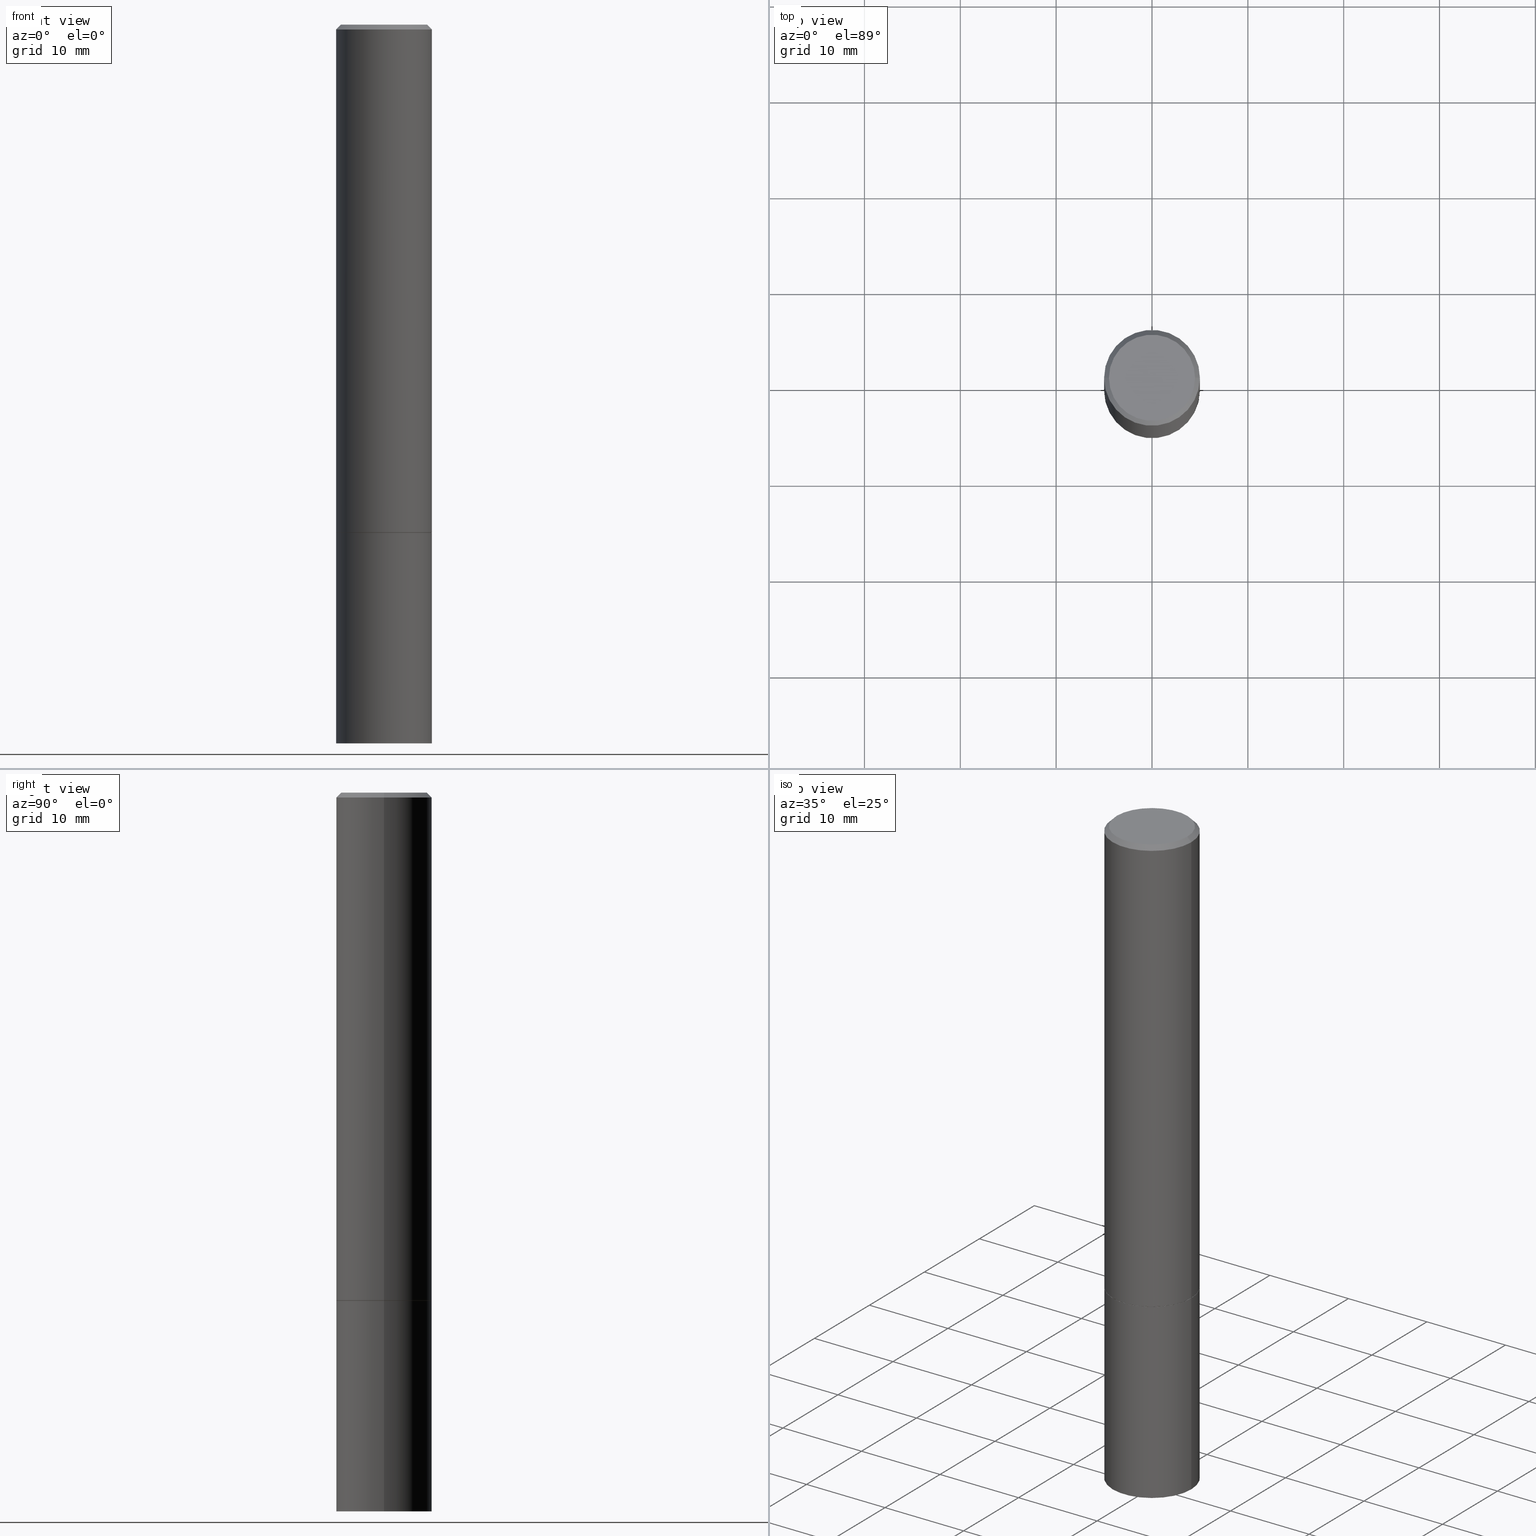
[diagram: canonical four-view strip — front | top / right | iso, engineering-drawing reading convention]
A machine part, canonical four-view strip (front | top / right | iso — engineering-drawing reading convention). The complete STEP part file that produces these views, byte-faithful:
ISO-10303-21;
HEADER;
FILE_DESCRIPTION (( 'STEP AP203' ),
    '1' );
FILE_NAME ('48812.STEP',
    '2024-02-28T15:23:30',
    ( '' ),
    ( '' ),
    'SwSTEP 2.0',
    'SolidWorks 2023',
    '' );
FILE_SCHEMA (( 'CONFIG_CONTROL_DESIGN' ));
ENDSEC;

DATA;
#1 = DATE_AND_TIME ( #59, #179 ) ;
#2 = EDGE_LOOP ( 'NONE', ( #311, #331, #308, #202 ) ) ;
#3 = SECURITY_CLASSIFICATION_LEVEL ( 'unclassified' ) ;
#4 = DIRECTION ( 'NONE',  ( -0.7071067811865469066, 2.468850131082251144E-15, -0.7071067811865479058 ) ) ;
#5 = ORIENTED_EDGE ( 'NONE', *, *, #273, .T. ) ;
#6 = ORIENTED_EDGE ( 'NONE', *, *, #151, .F. ) ;
#7 = ORIENTED_EDGE ( 'NONE', *, *, #272, .T. ) ;
#8 = VECTOR ( 'NONE', #4, 39.37007874015748854 ) ;
#9 = CONICAL_SURFACE ( 'NONE', #357, 0.1968499999999997752, 0.7853981633974476129 ) ;
#10 = CARTESIAN_POINT ( 'NONE',  ( 7.220980290903470182E-29, -1.030964609733603853E-14, -2.952799999999999869 ) ) ;
#11 = EDGE_LOOP ( 'NONE', ( #284, #18 ) ) ;
#12 = EDGE_CURVE ( 'NONE', #190, #319, #282, .T. ) ;
#13 = DIRECTION ( 'NONE',  ( 1.000000000000000000, -6.982962677686266711E-15, 0.000000000000000000 ) ) ;
#14 = DIRECTION ( 'NONE',  ( -2.445468806185136597E-29, 3.491481338843145583E-15, 1.000000000000000000 ) ) ;
#15 = ORIENTED_EDGE ( 'NONE', *, *, #47, .T. ) ;
#16 = CARTESIAN_POINT ( 'NONE',  ( 4.890937612370276662E-31, -6.982962677686296539E-17, -0.02000000000000001776 ) ) ;
#17 = LOCAL_TIME ( 10, 23, 30.00000000000000000, #180 ) ;
#18 = ORIENTED_EDGE ( 'NONE', *, *, #222, .T. ) ;
#19 = DIRECTION ( 'NONE',  ( -2.445468806185136877E-29, 3.491481338843145188E-15, 1.000000000000000000 ) ) ;
#20 = CARTESIAN_POINT ( 'NONE',  ( 1.374596203102613789E-15, 0.1968499999999896999, -2.952800000000000313 ) ) ;
#21 = CC_DESIGN_PERSON_AND_ORGANIZATION_ASSIGNMENT ( #64, #287, ( #286 ) ) ;
#22 = AXIS2_PLACEMENT_3D ( 'NONE', #358, #154, #330 ) ;
#23 =( NAMED_UNIT ( * ) PLANE_ANGLE_UNIT ( ) SI_UNIT ( $, .RADIAN. ) );
#24 = DIRECTION ( 'NONE',  ( -2.445468806185136597E-29, 3.491481338843145583E-15, 1.000000000000000000 ) ) ;
#25 = AXIS2_PLACEMENT_3D ( 'NONE', #73, #48, #199 ) ;
#26 = COORDINATED_UNIVERSAL_TIME_OFFSET ( 5, 0, .BEHIND. ) ;
#27 = ORIENTED_EDGE ( 'NONE', *, *, #132, .F. ) ;
#28 = APPROVAL_STATUS ( 'not_yet_approved' ) ;
#29 = EDGE_LOOP ( 'NONE', ( #351, #317, #36, #173 ) ) ;
#30 = EDGE_LOOP ( 'NONE', ( #177, #63, #253, #71 ) ) ;
#31 = AXIS2_PLACEMENT_3D ( 'NONE', #137, #363, #80 ) ;
#32 = DIRECTION ( 'NONE',  ( -2.445468806185136597E-29, 3.491481338843145583E-15, 1.000000000000000000 ) ) ;
#33 = PERSON_AND_ORGANIZATION ( #125, #79 ) ;
#34 = VERTEX_POINT ( 'NONE', #88 ) ;
#35 = FACE_OUTER_BOUND ( 'NONE', #57, .T. ) ;
#36 = ORIENTED_EDGE ( 'NONE', *, *, #214, .T. ) ;
#37 = CIRCLE ( 'NONE', #275, 0.1968500000000000250 ) ;
#38 = DIRECTION ( 'NONE',  ( -2.445468806185136597E-29, 3.491481338843145583E-15, 1.000000000000000000 ) ) ;
#39 = MANIFOLD_SOLID_BREP ( 'Body-Move/Copy2[2]', #161 ) ;
#40 = CARTESIAN_POINT ( 'NONE',  ( -0.1958499999999999963, -5.894076161777834937E-15, -2.086699999999999999 ) ) ;
#41 = CARTESIAN_POINT ( 'NONE',  ( 7.220980290903470182E-29, -1.030964609733603853E-14, -2.952799999999999869 ) ) ;
#42 = EDGE_CURVE ( 'NONE', #270, #355, #210, .T. ) ;
#43 = LINE ( 'NONE', #40, #102 ) ;
#44 = APPROVAL_PERSON_ORGANIZATION ( #33, #148, #313 ) ;
#45 = SECURITY_CLASSIFICATION ( '', '', #3 ) ;
#46 = FACE_OUTER_BOUND ( 'NONE', #169, .T. ) ;
#47 = EDGE_CURVE ( 'NONE', #117, #190, #209, .T. ) ;
#48 = DIRECTION ( 'NONE',  ( -2.438088387897960049E-29, 3.491481338843145188E-15, 1.000000000000000000 ) ) ;
#49 = FACE_OUTER_BOUND ( 'NONE', #2, .T. ) ;
#50 = AXIS2_PLACEMENT_3D ( 'NONE', #249, #139, #359 ) ;
#51 = APPROVAL_PERSON_ORGANIZATION ( #83, #96, #112 ) ;
#52 = PLANE ( 'NONE',  #225 ) ;
#53 = EDGE_CURVE ( 'NONE', #270, #142, #221, .T. ) ;
#54 = FACE_OUTER_BOUND ( 'NONE', #172, .T. ) ;
#55 = EDGE_CURVE ( 'NONE', #301, #319, #343, .T. ) ;
#56 = COORDINATED_UNIVERSAL_TIME_OFFSET ( 5, 0, .BEHIND. ) ;
#57 = EDGE_LOOP ( 'NONE', ( #238, #346 ) ) ;
#58 = AXIS2_PLACEMENT_3D ( 'NONE', #185, #182, #67 ) ;
#59 = CALENDAR_DATE ( 2024, 28, 2 ) ;
#60 = CARTESIAN_POINT ( 'NONE',  ( 0.000000000000000000, 0.000000000000000000, 0.000000000000000000 ) ) ;
#61 = EDGE_LOOP ( 'NONE', ( #149, #6, #15, #146 ) ) ;
#62 = PERSON_AND_ORGANIZATION ( #125, #79 ) ;
#63 = ORIENTED_EDGE ( 'NONE', *, *, #244, .T. ) ;
#64 = PERSON_AND_ORGANIZATION ( #125, #79 ) ;
#65 = DIRECTION ( 'NONE',  ( -2.445468806185136877E-29, 3.491481338843145188E-15, 1.000000000000000000 ) ) ;
#66 = ADVANCED_FACE ( 'NONE', ( #207 ), #237, .T. ) ;
#67 = DIRECTION ( 'NONE',  ( 1.000000000000000000, -6.982962677686268288E-15, 0.000000000000000000 ) ) ;
#68 = EDGE_CURVE ( 'NONE', #350, #274, #113, .T. ) ;
#69 = DIRECTION ( 'NONE',  ( -1.000000000000000000, 6.982962677686266711E-15, 0.000000000000000000 ) ) ;
#70 = PLANE ( 'NONE',  #25 ) ;
#71 = ORIENTED_EDGE ( 'NONE', *, *, #233, .F. ) ;
#72 = LINE ( 'NONE', #95, #315 ) ;
#73 = CARTESIAN_POINT ( 'NONE',  ( 5.102959757866523939E-29, -7.285674109763990928E-15, -2.086699999999999999 ) ) ;
#74 = DIRECTION ( 'NONE',  ( -2.445468806185136597E-29, 3.491481338843145583E-15, 1.000000000000000000 ) ) ;
#75 = CIRCLE ( 'NONE', #107, 0.1768499999999997851 ) ;
#76 = FACE_OUTER_BOUND ( 'NONE', #30, .T. ) ;
#77 = VERTEX_POINT ( 'NONE', #181 ) ;
#78 = CARTESIAN_POINT ( 'NONE',  ( 5.102959757866523939E-29, -7.285674109763990928E-15, -2.086699999999999999 ) ) ;
#79 = ORGANIZATION ( 'UNSPECIFIED', 'UNSPECIFIED', '' ) ;
#80 = DIRECTION ( 'NONE',  ( 1.000000000000000000, 0.000000000000000000, 0.000000000000000000 ) ) ;
#81 = CC_DESIGN_PERSON_AND_ORGANIZATION_ASSIGNMENT ( #89, #292, ( #324 ) ) ;
#82 = ORIENTED_EDGE ( 'NONE', *, *, #86, .T. ) ;
#83 = PERSON_AND_ORGANIZATION ( #125, #79 ) ;
#84 = CALENDAR_DATE ( 2024, 28, 2 ) ;
#85 = ORIENTED_EDGE ( 'NONE', *, *, #233, .T. ) ;
#86 = EDGE_CURVE ( 'NONE', #142, #223, #43, .T. ) ;
#87 = CARTESIAN_POINT ( 'NONE',  ( 0.1968499999999997752, -1.420318657638187347E-15, -0.02000000000000001776 ) ) ;
#88 = CARTESIAN_POINT ( 'NONE',  ( -0.1968500000000000250, -7.398956728206258518E-15, -2.086699999999999999 ) ) ;
#89 = PERSON_AND_ORGANIZATION ( #125, #79 ) ;
#90 = EDGE_LOOP ( 'NONE', ( #261, #291 ) ) ;
#91 = AXIS2_PLACEMENT_3D ( 'NONE', #277, #101, #159 ) ;
#92 = PRODUCT_RELATED_PRODUCT_CATEGORY ( 'detail', '', ( #286 ) ) ;
#93 = CARTESIAN_POINT ( 'NONE',  ( -0.1968500000000000250, -2.277302752257247033E-15, -2.085699999999999665 ) ) ;
#94 = DIRECTION ( 'NONE',  ( 1.000000000000000000, -6.982962677686267499E-15, 0.000000000000000000 ) ) ;
#95 = CARTESIAN_POINT ( 'NONE',  ( -0.1968500000000000250, 1.398703375343757393E-15, -9.682923725166783677E-30 ) ) ;
#96 = APPROVAL ( #141, 'UNSPECIFIED' ) ;
#97 = CONICAL_SURFACE ( 'NONE', #162, 0.1968499999999997752, 0.7853981633974476129 ) ;
#98 = AXIS2_PLACEMENT_3D ( 'NONE', #356, #157, #94 ) ;
#99 = CARTESIAN_POINT ( 'NONE',  ( 0.1968500000000000250, -8.660270312866532536E-15, -2.086699999999999999 ) ) ;
#100 = DIRECTION ( 'NONE',  ( 2.445468806185136597E-29, -3.491481338843145583E-15, -1.000000000000000000 ) ) ;
#101 = DIRECTION ( 'NONE',  ( -2.445468806185136597E-29, 3.491481338843145583E-15, 1.000000000000000000 ) ) ;
#102 = VECTOR ( 'NONE', #211, 39.37007874015748854 ) ;
#103 = CIRCLE ( 'NONE', #297, 0.1968499999999997752 ) ;
#104 = EDGE_LOOP ( 'NONE', ( #288, #5, #124, #289 ) ) ;
#105 = CYLINDRICAL_SURFACE ( 'NONE', #247, 0.1968500000000000250 ) ;
#106 = ADVANCED_FACE ( 'NONE', ( #329 ), #97, .T. ) ;
#107 = AXIS2_PLACEMENT_3D ( 'NONE', #129, #14, #126 ) ;
#108 = LOCAL_TIME ( 10, 23, 30.00000000000000000, #56 ) ;
#109 = PERSON_AND_ORGANIZATION_ROLE ( 'classification_officer' ) ;
#110 = APPLICATION_PROTOCOL_DEFINITION ( 'international standard', 'config_control_design', 1994, #184 ) ;
#111 = CARTESIAN_POINT ( 'NONE',  ( 0.1958499999999999963, -8.653287350188846522E-15, -2.086699999999999999 ) ) ;
#112 = APPROVAL_ROLE ( '' ) ;
#113 = LINE ( 'NONE', #325, #155 ) ;
#114 = AXIS2_PLACEMENT_3D ( 'NONE', #153, #266, #327 ) ;
#115 = CC_DESIGN_SECURITY_CLASSIFICATION ( #45, ( #324 ) ) ;
#116 = PERSON_AND_ORGANIZATION ( #125, #79 ) ;
#117 = VERTEX_POINT ( 'NONE', #302 ) ;
#118 = DIRECTION ( 'NONE',  ( 0.7071067811865469066, -7.319954787623252890E-15, -0.7071067811865479058 ) ) ;
#119 = ORIENTED_EDGE ( 'NONE', *, *, #53, .T. ) ;
#120 = DIRECTION ( 'NONE',  ( -1.000000000000000000, 6.982962677686266711E-15, 0.000000000000000000 ) ) ;
#121 = ORIENTED_EDGE ( 'NONE', *, *, #144, .F. ) ;
#122 = DIRECTION ( 'NONE',  ( 1.000000000000000000, -6.982962677686268288E-15, 0.000000000000000000 ) ) ;
#123 = CC_DESIGN_PERSON_AND_ORGANIZATION_ASSIGNMENT ( #62, #109, ( #45 ) ) ;
#124 = ORIENTED_EDGE ( 'NONE', *, *, #42, .T. ) ;
#125 = PERSON ( 'UNSPECIFIED', 'UNSPECIFIED', 'UNSPECIFIED', ('UNSPECIFIED'), ('UNSPECIFIED'), ('UNSPECIFIED') ) ;
#126 = DIRECTION ( 'NONE',  ( 1.000000000000000000, -6.982962677686266711E-15, 4.875932113059884174E-29 ) ) ;
#127 = ORIENTED_EDGE ( 'NONE', *, *, #42, .F. ) ;
#128 = APPROVAL_PERSON_ORGANIZATION ( #116, #218, #320 ) ;
#129 = CARTESIAN_POINT ( 'NONE',  ( -1.043851414335219820E-46, 1.490343170380447200E-32, 4.268512490100411279E-18 ) ) ;
#130 = DIMENSIONAL_EXPONENTS ( 1.000000000000000000, 0.000000000000000000, 0.000000000000000000, 0.000000000000000000, 0.000000000000000000, 0.000000000000000000, 0.000000000000000000 ) ;
#131 = CARTESIAN_POINT ( 'NONE',  ( 4.890937612370276662E-31, -6.982962677686296539E-17, -0.02000000000000001776 ) ) ;
#132 = EDGE_CURVE ( 'NONE', #350, #77, #133, .T. ) ;
#133 = CIRCLE ( 'NONE', #263, 0.1968500000000000250 ) ;
#134 = DIRECTION ( 'NONE',  ( -2.445468806185136597E-29, 3.491481338843145583E-15, 1.000000000000000000 ) ) ;
#135 = CIRCLE ( 'NONE', #50, 0.1968500000000000250 ) ;
#136 = ORIENTED_EDGE ( 'NONE', *, *, #68, .T. ) ;
#137 = CARTESIAN_POINT ( 'NONE',  ( 0.000000000000000000, 0.000000000000000000, 0.000000000000000000 ) ) ;
#138 = CARTESIAN_POINT ( 'NONE',  ( 0.000000000000000000, 0.000000000000000000, 0.000000000000000000 ) ) ;
#139 = DIRECTION ( 'NONE',  ( -2.445468806185136597E-29, 3.491481338843145583E-15, 1.000000000000000000 ) ) ;
#140 = VECTOR ( 'NONE', #189, 39.37007874015748143 ) ;
#141 = APPROVAL_STATUS ( 'not_yet_approved' ) ;
#142 = VERTEX_POINT ( 'NONE', #240 ) ;
#143 = CALENDAR_DATE ( 2024, 28, 2 ) ;
#144 = EDGE_CURVE ( 'NONE', #34, #274, #276, .T. ) ;
#145 = DIRECTION ( 'NONE',  ( -2.445468806185136597E-29, 3.491481338843145583E-15, 1.000000000000000000 ) ) ;
#146 = ORIENTED_EDGE ( 'NONE', *, *, #12, .T. ) ;
#147 = CARTESIAN_POINT ( 'NONE',  ( 5.102959757866523939E-29, -7.285674109763990928E-15, -2.086699999999999999 ) ) ;
#148 = APPROVAL ( #254, 'UNSPECIFIED' ) ;
#149 = ORIENTED_EDGE ( 'NONE', *, *, #55, .F. ) ;
#150 = CARTESIAN_POINT ( 'NONE',  ( 5.102959757866523939E-29, -7.285674109763990928E-15, -2.086699999999999999 ) ) ;
#151 = EDGE_CURVE ( 'NONE', #117, #301, #269, .T. ) ;
#152 = FACE_OUTER_BOUND ( 'NONE', #11, .T. ) ;
#153 = CARTESIAN_POINT ( 'NONE',  ( 1.374596203102592490E-15, 0.1968499999999927252, -2.086700000000000887 ) ) ;
#154 = DIRECTION ( 'NONE',  ( -2.445468806185136597E-29, 3.491481338843145583E-15, 1.000000000000000000 ) ) ;
#155 = VECTOR ( 'NONE', #65, 39.37007874015748143 ) ;
#156 = AXIS2_PLACEMENT_3D ( 'NONE', #150, #38, #122 ) ;
#157 = DIRECTION ( 'NONE',  ( -2.445468806185136597E-29, 3.491481338843145583E-15, 1.000000000000000000 ) ) ;
#158 = CC_DESIGN_PERSON_AND_ORGANIZATION_ASSIGNMENT ( #316, #366, ( #294 ) ) ;
#159 = DIRECTION ( 'NONE',  ( 1.000000000000000000, -6.982962677686267499E-15, 0.000000000000000000 ) ) ;
#160 =( NAMED_UNIT ( * ) SI_UNIT ( $, .STERADIAN. ) SOLID_ANGLE_UNIT ( ) );
#161 = CLOSED_SHELL ( 'NONE', ( #344, #285, #203, #106, #66, #164, #278, #176 ) ) ;
#162 = AXIS2_PLACEMENT_3D ( 'NONE', #16, #326, #120 ) ;
#163 = DIRECTION ( 'NONE',  ( -1.000000000000000000, 6.982962677686265922E-15, -4.876176775795935793E-29 ) ) ;
#164 = ADVANCED_FACE ( 'NONE', ( #300 ), #198, .T. ) ;
#165 = CARTESIAN_POINT ( 'NONE',  ( 0.1968500000000000250, -1.168424230043858014E-14, -2.952799999999999869 ) ) ;
#166 = DIRECTION ( 'NONE',  ( -2.445468806185136597E-29, 3.491481338843145583E-15, 1.000000000000000000 ) ) ;
#167 = CALENDAR_DATE ( 2024, 28, 2 ) ;
#168 = VECTOR ( 'NONE', #293, 39.37007874015748854 ) ;
#169 = EDGE_LOOP ( 'NONE', ( #27, #235 ) ) ;
#170 = CC_DESIGN_APPROVAL ( #96, ( #45 ) ) ;
#171 = PERSON_AND_ORGANIZATION_ROLE ( 'creator' ) ;
#172 = EDGE_LOOP ( 'NONE', ( #212, #7, #136, #121 ) ) ;
#173 = ORIENTED_EDGE ( 'NONE', *, *, #47, .F. ) ;
#174 = CALENDAR_DATE ( 2024, 28, 2 ) ;
#175 = EDGE_LOOP ( 'NONE', ( #119, #82, #304, #127 ) ) ;
#176 = ADVANCED_FACE ( 'NONE', ( #152 ), #188, .F. ) ;
#177 = ORIENTED_EDGE ( 'NONE', *, *, #353, .T. ) ;
#178 = AXIS2_PLACEMENT_3D ( 'NONE', #259, #32, #347 ) ;
#179 = LOCAL_TIME ( 10, 23, 30.00000000000000000, #229 ) ;
#180 = COORDINATED_UNIVERSAL_TIME_OFFSET ( 5, 0, .BEHIND. ) ;
#181 = CARTESIAN_POINT ( 'NONE',  ( -0.1968500000000000250, -7.398956728206258518E-15, -2.952799999999999869 ) ) ;
#182 = DIRECTION ( 'NONE',  ( -2.445468806185136597E-29, 3.491481338843145583E-15, 1.000000000000000000 ) ) ;
#183 = ADVANCED_FACE ( 'NONE', ( #35 ), #271, .F. ) ;
#184 = APPLICATION_CONTEXT ( 'configuration controlled 3d designs of mechanical parts and assemblies' ) ;
#185 = CARTESIAN_POINT ( 'NONE',  ( 5.102959757866523939E-29, -7.285674109763990928E-15, -2.086699999999999999 ) ) ;
#186 = DESIGN_CONTEXT ( 'detailed design', #184, 'design' ) ;
#187 = AXIS2_PLACEMENT_3D ( 'NONE', #337, #74, #364 ) ;
#188 = PLANE ( 'NONE',  #283 ) ;
#189 = DIRECTION ( 'NONE',  ( -2.445468806185136877E-29, 3.491481338843145188E-15, 1.000000000000000000 ) ) ;
#190 = VERTEX_POINT ( 'NONE', #241 ) ;
#191 = DIRECTION ( 'NONE',  ( -2.445468806185136597E-29, 3.491481338843145583E-15, 1.000000000000000000 ) ) ;
#192 = VECTOR ( 'NONE', #19, 39.37007874015748143 ) ;
#193 = CARTESIAN_POINT ( 'NONE',  ( 0.1968499999999997752, -1.420318657638187347E-15, -0.02000000000000001776 ) ) ;
#194 = DIRECTION ( 'NONE',  ( 2.438088387897960049E-29, -3.491481338843145188E-15, -1.000000000000000000 ) ) ;
#195 = CC_DESIGN_PERSON_AND_ORGANIZATION_ASSIGNMENT ( #323, #171, ( #324 ) ) ;
#196 = CARTESIAN_POINT ( 'NONE',  ( 0.000000000000000000, 0.000000000000000000, 0.000000000000000000 ) ) ;
#197 = ORIENTED_EDGE ( 'NONE', *, *, #12, .F. ) ;
#198 = CONICAL_SURFACE ( 'NONE', #58, 0.1958499999999999963, 0.7853981633974141952 ) ;
#199 = DIRECTION ( 'NONE',  ( 1.000000000000000000, -6.982962677686265922E-15, 4.876176775795935793E-29 ) ) ;
#200 = CARTESIAN_POINT ( 'NONE',  ( 5.102959757866523939E-29, -7.285674109763990928E-15, -2.086699999999999999 ) ) ;
#201 = APPROVAL_DATE_TIME ( #251, #218 ) ;
#202 = ORIENTED_EDGE ( 'NONE', *, *, #68, .F. ) ;
#203 = ADVANCED_FACE ( 'NONE', ( #352 ), #9, .T. ) ;
#204 = DATE_AND_TIME ( #84, #264 ) ;
#205 = ORIENTED_EDGE ( 'NONE', *, *, #244, .F. ) ;
#206 = CIRCLE ( 'NONE', #290, 0.1968500000000000250 ) ;
#207 = FACE_OUTER_BOUND ( 'NONE', #314, .T. ) ;
#208 = ADVANCED_BREP_SHAPE_REPRESENTATION ( '48812', ( #280, #39, #31 ), #258 ) ;
#209 = LINE ( 'NONE', #321, #8 ) ;
#210 = LINE ( 'NONE', #111, #168 ) ;
#211 = DIRECTION ( 'NONE',  ( -0.7071067811865232589, 7.493145998870265808E-15, 0.7071067811865715536 ) ) ;
#212 = ORIENTED_EDGE ( 'NONE', *, *, #227, .F. ) ;
#213 = CARTESIAN_POINT ( 'NONE',  ( -0.1968499999999999139, 1.398703375343756604E-15, -9.682923725166778072E-30 ) ) ;
#214 = EDGE_CURVE ( 'NONE', #319, #190, #103, .T. ) ;
#215 = DIRECTION ( 'NONE',  ( 1.000000000000000000, -6.982962677686267499E-15, 0.000000000000000000 ) ) ;
#216 = CONICAL_SURFACE ( 'NONE', #334, 0.1958499999999999963, 0.7853981633974141952 ) ;
#217 = FACE_OUTER_BOUND ( 'NONE', #90, .T. ) ;
#218 = APPROVAL ( #28, 'UNSPECIFIED' ) ;
#219 = DIRECTION ( 'NONE',  ( -1.000000000000000000, 6.982962677686265922E-15, -4.876176775795935793E-29 ) ) ;
#220 = CYLINDRICAL_SURFACE ( 'NONE', #243, 0.1968499999999999139 ) ;
#221 = CIRCLE ( 'NONE', #257, 0.1958499999999999963 ) ;
#222 = EDGE_CURVE ( 'NONE', #301, #117, #75, .T. ) ;
#223 = VERTEX_POINT ( 'NONE', #93 ) ;
#224 = APPLICATION_PROTOCOL_DEFINITION ( 'international standard', 'config_control_design', 1994, #360 ) ;
#225 = AXIS2_PLACEMENT_3D ( 'NONE', #20, #194, #163 ) ;
#226 = DIRECTION ( 'NONE',  ( -2.445468806185136597E-29, 3.491481338843145583E-15, 1.000000000000000000 ) ) ;
#227 = EDGE_CURVE ( 'NONE', #77, #34, #72, .T. ) ;
#228 = DATE_AND_TIME ( #167, #108 ) ;
#229 = COORDINATED_UNIVERSAL_TIME_OFFSET ( 5, 0, .BEHIND. ) ;
#230 = DIRECTION ( 'NONE',  ( 1.000000000000000000, -6.982962677686268288E-15, 0.000000000000000000 ) ) ;
#231 = SHAPE_DEFINITION_REPRESENTATION ( #361, #208 ) ;
#232 = ORIENTED_EDGE ( 'NONE', *, *, #348, .T. ) ;
#233 = EDGE_CURVE ( 'NONE', #355, #319, #245, .T. ) ;
#234 = DATE_AND_TIME ( #174, #250 ) ;
#235 = ORIENTED_EDGE ( 'NONE', *, *, #272, .F. ) ;
#236 = APPROVAL_DATE_TIME ( #204, #96 ) ;
#237 = CYLINDRICAL_SURFACE ( 'NONE', #322, 0.1968499999999999139 ) ;
#238 = ORIENTED_EDGE ( 'NONE', *, *, #310, .T. ) ;
#239 = CIRCLE ( 'NONE', #156, 0.1958499999999999963 ) ;
#240 = CARTESIAN_POINT ( 'NONE',  ( -0.1958499999999999963, -5.888777707429612535E-15, -2.086699999999999999 ) ) ;
#241 = CARTESIAN_POINT ( 'NONE',  ( -0.1968499999999997752, 1.304766576325677127E-15, -0.02000000000000001776 ) ) ;
#242 = CARTESIAN_POINT ( 'NONE',  ( 0.1958499999999999963, -8.653287350188846522E-15, -2.086699999999999999 ) ) ;
#243 = AXIS2_PLACEMENT_3D ( 'NONE', #138, #134, #312 ) ;
#244 = EDGE_CURVE ( 'NONE', #223, #190, #332, .T. ) ;
#245 = LINE ( 'NONE', #295, #192 ) ;
#246 = DIRECTION ( 'NONE',  ( -2.445468806185136597E-29, 3.491481338843145583E-15, 1.000000000000000000 ) ) ;
#247 = AXIS2_PLACEMENT_3D ( 'NONE', #196, #226, #336 ) ;
#248 = CARTESIAN_POINT ( 'NONE',  ( 0.1968500000000000250, -8.656778831527691107E-15, -2.085699999999999665 ) ) ;
#249 = CARTESIAN_POINT ( 'NONE',  ( 5.100514289060338336E-29, -7.282182628425147921E-15, -2.085699999999999665 ) ) ;
#250 = LOCAL_TIME ( 10, 23, 30.00000000000000000, #26 ) ;
#251 = DATE_AND_TIME ( #143, #17 ) ;
#252 = DATE_TIME_ROLE ( 'creation_date' ) ;
#253 = ORIENTED_EDGE ( 'NONE', *, *, #214, .F. ) ;
#254 = APPROVAL_STATUS ( 'not_yet_approved' ) ;
#255 = CC_DESIGN_DATE_AND_TIME_ASSIGNMENT ( #1, #252, ( #294 ) ) ;
#256 = DIRECTION ( 'NONE',  ( 1.000000000000000000, -6.982962677686266711E-15, 4.876176775795935793E-29 ) ) ;
#257 = AXIS2_PLACEMENT_3D ( 'NONE', #147, #260, #230 ) ;
#258 =( GEOMETRIC_REPRESENTATION_CONTEXT ( 3 ) GLOBAL_UNCERTAINTY_ASSIGNED_CONTEXT ( ( #341 ) ) GLOBAL_UNIT_ASSIGNED_CONTEXT ( ( #362, #23, #160 ) ) REPRESENTATION_CONTEXT ( 'NONE', 'WORKASPACE' ) );
#259 = CARTESIAN_POINT ( 'NONE',  ( 4.890937612370276662E-31, -6.982962677686296539E-17, -0.02000000000000001776 ) ) ;
#260 = DIRECTION ( 'NONE',  ( -2.445468806185136597E-29, 3.491481338843145583E-15, 1.000000000000000000 ) ) ;
#261 = ORIENTED_EDGE ( 'NONE', *, *, #53, .F. ) ;
#262 = DIRECTION ( 'NONE',  ( 1.000000000000000000, -6.982962677686267499E-15, 0.000000000000000000 ) ) ;
#263 = AXIS2_PLACEMENT_3D ( 'NONE', #41, #191, #262 ) ;
#264 = LOCAL_TIME ( 10, 23, 30.00000000000000000, #342 ) ;
#265 = DIRECTION ( 'NONE',  ( 2.438088387897960049E-29, -3.491481338843145188E-15, -1.000000000000000000 ) ) ;
#266 = DIRECTION ( 'NONE',  ( 2.438088387897960049E-29, -3.491481338843145188E-15, -1.000000000000000000 ) ) ;
#267 = CARTESIAN_POINT ( 'NONE',  ( 1.234936949548814617E-15, 0.1768499999999997851, -6.153342185293593634E-16 ) ) ;
#268 = CLOSED_SHELL ( 'NONE', ( #328, #349, #183, #281 ) ) ;
#269 = CIRCLE ( 'NONE', #22, 0.1768499999999997851 ) ;
#270 = VERTEX_POINT ( 'NONE', #242 ) ;
#271 = PLANE ( 'NONE',  #114 ) ;
#272 = EDGE_CURVE ( 'NONE', #77, #350, #206, .T. ) ;
#273 = EDGE_CURVE ( 'NONE', #142, #270, #239, .T. ) ;
#274 = VERTEX_POINT ( 'NONE', #99 ) ;
#275 = AXIS2_PLACEMENT_3D ( 'NONE', #200, #166, #305 ) ;
#276 = CIRCLE ( 'NONE', #98, 0.1968500000000000250 ) ;
#277 = CARTESIAN_POINT ( 'NONE',  ( 5.100514289060338336E-29, -7.282182628425147921E-15, -2.085699999999999665 ) ) ;
#278 = ADVANCED_FACE ( 'NONE', ( #217 ), #70, .F. ) ;
#279 = FACE_OUTER_BOUND ( 'NONE', #175, .T. ) ;
#280 = MANIFOLD_SOLID_BREP ( 'Body-Move/Copy2[1]', #268 ) ;
#281 = ADVANCED_FACE ( 'NONE', ( #54 ), #307, .T. ) ;
#282 = CIRCLE ( 'NONE', #178, 0.1968499999999997752 ) ;
#283 = AXIS2_PLACEMENT_3D ( 'NONE', #267, #265, #219 ) ;
#284 = ORIENTED_EDGE ( 'NONE', *, *, #151, .T. ) ;
#285 = ADVANCED_FACE ( 'NONE', ( #76 ), #220, .T. ) ;
#286 = PRODUCT ( '48812', '48812', '', ( #339 ) ) ;
#287 = PERSON_AND_ORGANIZATION_ROLE ( 'design_owner' ) ;
#288 = ORIENTED_EDGE ( 'NONE', *, *, #86, .F. ) ;
#289 = ORIENTED_EDGE ( 'NONE', *, *, #348, .F. ) ;
#290 = AXIS2_PLACEMENT_3D ( 'NONE', #10, #246, #215 ) ;
#291 = ORIENTED_EDGE ( 'NONE', *, *, #273, .F. ) ;
#292 = PERSON_AND_ORGANIZATION_ROLE ( 'design_supplier' ) ;
#293 = DIRECTION ( 'NONE',  ( 0.7071067811865232589, -2.468850131082003836E-15, 0.7071067811865715536 ) ) ;
#294 = PRODUCT_DEFINITION ( 'UNKNOWN', '', #324, #186 ) ;
#295 = CARTESIAN_POINT ( 'NONE',  ( 0.1968499999999999139, -1.374596203102541017E-15, 9.598753983154295253E-30 ) ) ;
#296 = DIRECTION ( 'NONE',  ( -2.445468806185136877E-29, 3.491481338843145188E-15, 1.000000000000000000 ) ) ;
#297 = AXIS2_PLACEMENT_3D ( 'NONE', #354, #299, #13 ) ;
#298 = CC_DESIGN_DATE_AND_TIME_ASSIGNMENT ( #228, #340, ( #45 ) ) ;
#299 = DIRECTION ( 'NONE',  ( -2.445468806185136597E-29, 3.491481338843145583E-15, 1.000000000000000000 ) ) ;
#300 = FACE_OUTER_BOUND ( 'NONE', #104, .T. ) ;
#301 = VERTEX_POINT ( 'NONE', #309 ) ;
#302 = CARTESIAN_POINT ( 'NONE',  ( -0.1768499999999997851, 1.269851762937246069E-15, 4.268512490091652920E-18 ) ) ;
#303 = CC_DESIGN_APPROVAL ( #148, ( #324 ) ) ;
#304 = ORIENTED_EDGE ( 'NONE', *, *, #353, .F. ) ;
#305 = DIRECTION ( 'NONE',  ( 1.000000000000000000, -6.982962677686267499E-15, 0.000000000000000000 ) ) ;
#306 = LENGTH_MEASURE_WITH_UNIT ( LENGTH_MEASURE( 0.02539999999999999897 ), #335 );
#307 = CYLINDRICAL_SURFACE ( 'NONE', #187, 0.1968500000000000250 ) ;
#308 = ORIENTED_EDGE ( 'NONE', *, *, #310, .F. ) ;
#309 = CARTESIAN_POINT ( 'NONE',  ( 0.1768499999999997851, -1.316798864272040563E-15, 4.268512490109333727E-18 ) ) ;
#310 = EDGE_CURVE ( 'NONE', #274, #34, #37, .T. ) ;
#311 = ORIENTED_EDGE ( 'NONE', *, *, #132, .T. ) ;
#312 = DIRECTION ( 'NONE',  ( 1.000000000000000000, -6.982962677686266711E-15, 4.876176775795935793E-29 ) ) ;
#313 = APPROVAL_ROLE ( '' ) ;
#314 = EDGE_LOOP ( 'NONE', ( #205, #232, #85, #197 ) ) ;
#315 = VECTOR ( 'NONE', #296, 39.37007874015748143 ) ;
#316 = PERSON_AND_ORGANIZATION ( #125, #79 ) ;
#317 = ORIENTED_EDGE ( 'NONE', *, *, #55, .T. ) ;
#318 = APPROVAL_DATE_TIME ( #234, #148 ) ;
#319 = VERTEX_POINT ( 'NONE', #193 ) ;
#320 = APPROVAL_ROLE ( '' ) ;
#321 = CARTESIAN_POINT ( 'NONE',  ( -0.1968499999999997752, 1.304766576325677127E-15, -0.02000000000000001776 ) ) ;
#322 = AXIS2_PLACEMENT_3D ( 'NONE', #60, #145, #256 ) ;
#323 = PERSON_AND_ORGANIZATION ( #125, #79 ) ;
#324 = PRODUCT_DEFINITION_FORMATION_WITH_SPECIFIED_SOURCE ( 'ANY', '', #286, .NOT_KNOWN. ) ;
#325 = CARTESIAN_POINT ( 'NONE',  ( 0.1968500000000000250, -1.374596203102541608E-15, 9.598753983154300858E-30 ) ) ;
#326 = DIRECTION ( 'NONE',  ( 2.445468806185136597E-29, -3.491481338843145583E-15, -1.000000000000000000 ) ) ;
#327 = DIRECTION ( 'NONE',  ( -1.000000000000000000, 6.982962677686265922E-15, -4.876176775795935793E-29 ) ) ;
#328 = ADVANCED_FACE ( 'NONE', ( #49 ), #105, .T. ) ;
#329 = FACE_OUTER_BOUND ( 'NONE', #61, .T. ) ;
#330 = DIRECTION ( 'NONE',  ( 1.000000000000000000, -6.982962677686266711E-15, 4.875932113059884174E-29 ) ) ;
#331 = ORIENTED_EDGE ( 'NONE', *, *, #227, .T. ) ;
#332 = LINE ( 'NONE', #213, #140 ) ;
#333 = DIRECTION ( 'NONE',  ( 1.000000000000000000, -6.982962677686268288E-15, 0.000000000000000000 ) ) ;
#334 = AXIS2_PLACEMENT_3D ( 'NONE', #78, #24, #333 ) ;
#335 =( LENGTH_UNIT ( ) NAMED_UNIT ( * ) SI_UNIT ( $, .METRE. ) );
#336 = DIRECTION ( 'NONE',  ( 1.000000000000000000, -6.982962677686265922E-15, 4.876176775795935793E-29 ) ) ;
#337 = CARTESIAN_POINT ( 'NONE',  ( 0.000000000000000000, 0.000000000000000000, 0.000000000000000000 ) ) ;
#338 = CC_DESIGN_APPROVAL ( #218, ( #294 ) ) ;
#339 = MECHANICAL_CONTEXT ( 'NONE', #360, 'mechanical' ) ;
#340 = DATE_TIME_ROLE ( 'classification_date' ) ;
#341 = UNCERTAINTY_MEASURE_WITH_UNIT (LENGTH_MEASURE( 1.000000000000000082E-05 ), #362, 'distance_accuracy_value', 'NONE');
#342 = COORDINATED_UNIVERSAL_TIME_OFFSET ( 5, 0, .BEHIND. ) ;
#343 = LINE ( 'NONE', #87, #365 ) ;
#344 = ADVANCED_FACE ( 'NONE', ( #279 ), #216, .T. ) ;
#345 = CIRCLE ( 'NONE', #91, 0.1968500000000000250 ) ;
#346 = ORIENTED_EDGE ( 'NONE', *, *, #144, .T. ) ;
#347 = DIRECTION ( 'NONE',  ( 1.000000000000000000, -6.982962677686266711E-15, 0.000000000000000000 ) ) ;
#348 = EDGE_CURVE ( 'NONE', #223, #355, #135, .T. ) ;
#349 = ADVANCED_FACE ( 'NONE', ( #46 ), #52, .T. ) ;
#350 = VERTEX_POINT ( 'NONE', #165 ) ;
#351 = ORIENTED_EDGE ( 'NONE', *, *, #222, .F. ) ;
#352 = FACE_OUTER_BOUND ( 'NONE', #29, .T. ) ;
#353 = EDGE_CURVE ( 'NONE', #355, #223, #345, .T. ) ;
#354 = CARTESIAN_POINT ( 'NONE',  ( 4.890937612370276662E-31, -6.982962677686296539E-17, -0.02000000000000001776 ) ) ;
#355 = VERTEX_POINT ( 'NONE', #248 ) ;
#356 = CARTESIAN_POINT ( 'NONE',  ( 5.102959757866523939E-29, -7.285674109763990928E-15, -2.086699999999999999 ) ) ;
#357 = AXIS2_PLACEMENT_3D ( 'NONE', #131, #100, #69 ) ;
#358 = CARTESIAN_POINT ( 'NONE',  ( -1.043851414335219820E-46, 1.490343170380447200E-32, 4.268512490100411279E-18 ) ) ;
#359 = DIRECTION ( 'NONE',  ( 1.000000000000000000, -6.982962677686267499E-15, 0.000000000000000000 ) ) ;
#360 = APPLICATION_CONTEXT ( 'configuration controlled 3d designs of mechanical parts and assemblies' ) ;
#361 = PRODUCT_DEFINITION_SHAPE ( 'NONE', 'NONE',  #294 ) ;
#362 =( CONVERSION_BASED_UNIT ( 'INCH', #306 ) LENGTH_UNIT ( ) NAMED_UNIT ( #130 ) );
#363 = DIRECTION ( 'NONE',  ( 0.000000000000000000, 0.000000000000000000, 1.000000000000000000 ) ) ;
#364 = DIRECTION ( 'NONE',  ( 1.000000000000000000, -6.982962677686265922E-15, 4.876176775795935793E-29 ) ) ;
#365 = VECTOR ( 'NONE', #118, 39.37007874015748854 ) ;
#366 = PERSON_AND_ORGANIZATION_ROLE ( 'creator' ) ;
ENDSEC;
END-ISO-10303-21;
